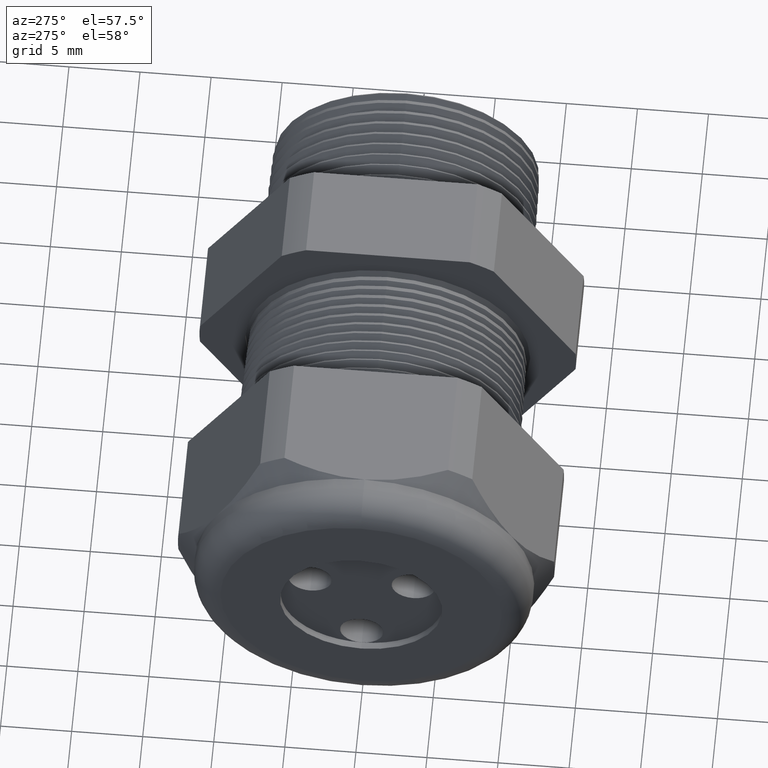
[diagram: clean part render]
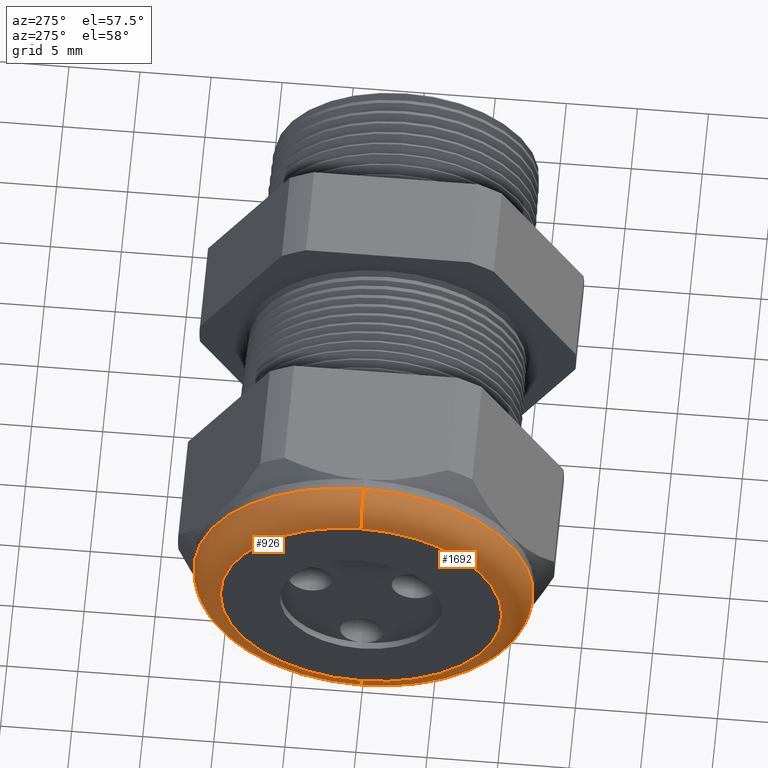
[diagram: same view with one multi-face feature highlighted, each face labeled with its STEP entity id]
A machine part, auxiliary view. The highlighted faces form ONE feature: a constant-radius fillet chain: 2 tangent blend faces with common blend radius 2.032 mm. The faces share edges in the B-rep.
Their STEP definitions:
[1] entity #1692 (Torus):
#930 = VERTEX_POINT ( 'NONE', #3406 ) ;
#931 = VERTEX_POINT ( 'NONE', #3405 ) ;
#933 = EDGE_CURVE ( 'NONE', #930, #934, #3404, .T. ) ;
#934 = VERTEX_POINT ( 'NONE', #3399 ) ;
#935 = VERTEX_POINT ( 'NONE', #3398 ) ;
#993 = EDGE_CURVE ( 'NONE', #931, #935, #3534, .T. ) ;
#1483 = EDGE_CURVE ( 'NONE', #931, #930, #4525, .T. ) ;
#1550 = EDGE_CURVE ( 'NONE', #934, #935, #4657, .T. ) ;
#1672 = ORIENTED_EDGE ( 'NONE', *, *, #993, .T. ) ;
#1673 = ORIENTED_EDGE ( 'NONE', *, *, #1550, .F. ) ;
#1692 = ADVANCED_FACE ( 'NONE', ( #4832 ), #4831, .T. ) ;
#1693 = EDGE_LOOP ( 'NONE', ( #1694, #1748, #1672, #1673 ) ) ;
#1694 = ORIENTED_EDGE ( 'NONE', *, *, #933, .F. ) ;
#1748 = ORIENTED_EDGE ( 'NONE', *, *, #1483, .F. ) ;
#3398 = CARTESIAN_POINT ( 'NONE',  ( -1.409999999999999900, 0.0000000000000000000, 0.3899999999999999600 ) ) ;
#3399 = CARTESIAN_POINT ( 'NONE',  ( -1.409999999999999900, 5.265981236333617600E-017, -0.3899999999999999600 ) ) ;
#3400 = DIRECTION ( 'NONE',  ( 0.0000000000000000000, -1.224646799147353900E-016, 1.000000000000000000 ) ) ;
#3401 = DIRECTION ( 'NONE',  ( 0.0000000000000000000, 1.000000000000000000, 1.224646799147353200E-016 ) ) ;
#3402 = CARTESIAN_POINT ( 'NONE',  ( -1.330000000000000100, 4.776122516674676800E-017, -0.3899999999999999600 ) ) ;
#3403 = AXIS2_PLACEMENT_3D ( 'NONE', #3402, #3401, #3400 ) ;
#3404 = CIRCLE ( 'NONE', #3403, 0.07999999999999996000 ) ;
#3405 = CARTESIAN_POINT ( 'NONE',  ( -1.330000000000000100, 5.755839955992558400E-017, 0.4699999999999999200 ) ) ;
#3406 = CARTESIAN_POINT ( 'NONE',  ( -1.330000000000000100, 0.0000000000000000000, -0.4699999999999999200 ) ) ;
#3530 = DIRECTION ( 'NONE',  ( 0.0000000000000000000, 0.0000000000000000000, -1.000000000000000000 ) ) ;
#3531 = DIRECTION ( 'NONE',  ( 0.0000000000000000000, -1.000000000000000000, 0.0000000000000000000 ) ) ;
#3532 = CARTESIAN_POINT ( 'NONE',  ( -1.330000000000000100, 0.0000000000000000000, 0.3899999999999999600 ) ) ;
#3533 = AXIS2_PLACEMENT_3D ( 'NONE', #3532, #3531, #3530 ) ;
#3534 = CIRCLE ( 'NONE', #3533, 0.07999999999999996000 ) ;
#4517 = DIRECTION ( 'NONE',  ( 0.0000000000000000000, 0.0000000000000000000, 1.000000000000000000 ) ) ;
#4518 = DIRECTION ( 'NONE',  ( 1.000000000000000000, 0.0000000000000000000, 0.0000000000000000000 ) ) ;
#4519 = CARTESIAN_POINT ( 'NONE',  ( -1.330000000000000100, 0.0000000000000000000, 0.0000000000000000000 ) ) ;
#4520 = AXIS2_PLACEMENT_3D ( 'NONE', #4519, #4518, #4517 ) ;
#4525 = CIRCLE ( 'NONE', #4520, 0.4699999999999999200 ) ;
#4653 = DIRECTION ( 'NONE',  ( 0.0000000000000000000, 0.0000000000000000000, 1.000000000000000000 ) ) ;
#4654 = DIRECTION ( 'NONE',  ( -1.000000000000000000, 0.0000000000000000000, 0.0000000000000000000 ) ) ;
#4655 = CARTESIAN_POINT ( 'NONE',  ( -1.409999999999999900, 0.0000000000000000000, 0.0000000000000000000 ) ) ;
#4656 = AXIS2_PLACEMENT_3D ( 'NONE', #4655, #4654, #4653 ) ;
#4657 = CIRCLE ( 'NONE', #4656, 0.3899999999999999600 ) ;
#4827 = DIRECTION ( 'NONE',  ( 0.0000000000000000000, 0.0000000000000000000, 1.000000000000000000 ) ) ;
#4828 = DIRECTION ( 'NONE',  ( -1.000000000000000000, 0.0000000000000000000, 0.0000000000000000000 ) ) ;
#4829 = CARTESIAN_POINT ( 'NONE',  ( -1.330000000000000100, 0.0000000000000000000, 0.0000000000000000000 ) ) ;
#4830 = AXIS2_PLACEMENT_3D ( 'NONE', #4829, #4828, #4827 ) ;
#4831 = TOROIDAL_SURFACE ( 'NONE', #4830, 0.3899999999999999600, 0.08000000000000000200 ) ;
#4832 = FACE_OUTER_BOUND ( 'NONE', #1693, .T. ) ;
[2] entity #926 (Torus):
#926 = ADVANCED_FACE ( 'NONE', ( #3417 ), #3414, .T. ) ;
#927 = EDGE_LOOP ( 'NONE', ( #928, #932, #990, #992 ) ) ;
#928 = ORIENTED_EDGE ( 'NONE', *, *, #929, .F. ) ;
#929 = EDGE_CURVE ( 'NONE', #930, #931, #3410, .T. ) ;
#930 = VERTEX_POINT ( 'NONE', #3406 ) ;
#931 = VERTEX_POINT ( 'NONE', #3405 ) ;
#932 = ORIENTED_EDGE ( 'NONE', *, *, #933, .T. ) ;
#933 = EDGE_CURVE ( 'NONE', #930, #934, #3404, .T. ) ;
#934 = VERTEX_POINT ( 'NONE', #3399 ) ;
#935 = VERTEX_POINT ( 'NONE', #3398 ) ;
#990 = ORIENTED_EDGE ( 'NONE', *, *, #991, .F. ) ;
#991 = EDGE_CURVE ( 'NONE', #935, #934, #3538, .T. ) ;
#992 = ORIENTED_EDGE ( 'NONE', *, *, #993, .F. ) ;
#993 = EDGE_CURVE ( 'NONE', #931, #935, #3534, .T. ) ;
#3398 = CARTESIAN_POINT ( 'NONE',  ( -1.409999999999999900, 0.0000000000000000000, 0.3899999999999999600 ) ) ;
#3399 = CARTESIAN_POINT ( 'NONE',  ( -1.409999999999999900, 5.265981236333617600E-017, -0.3899999999999999600 ) ) ;
#3400 = DIRECTION ( 'NONE',  ( 0.0000000000000000000, -1.224646799147353900E-016, 1.000000000000000000 ) ) ;
#3401 = DIRECTION ( 'NONE',  ( 0.0000000000000000000, 1.000000000000000000, 1.224646799147353200E-016 ) ) ;
#3402 = CARTESIAN_POINT ( 'NONE',  ( -1.330000000000000100, 4.776122516674676800E-017, -0.3899999999999999600 ) ) ;
#3403 = AXIS2_PLACEMENT_3D ( 'NONE', #3402, #3401, #3400 ) ;
#3404 = CIRCLE ( 'NONE', #3403, 0.07999999999999996000 ) ;
#3405 = CARTESIAN_POINT ( 'NONE',  ( -1.330000000000000100, 5.755839955992558400E-017, 0.4699999999999999200 ) ) ;
#3406 = CARTESIAN_POINT ( 'NONE',  ( -1.330000000000000100, 0.0000000000000000000, -0.4699999999999999200 ) ) ;
#3407 = DIRECTION ( 'NONE',  ( 0.0000000000000000000, 0.0000000000000000000, 1.000000000000000000 ) ) ;
#3408 = DIRECTION ( 'NONE',  ( 1.000000000000000000, 0.0000000000000000000, 0.0000000000000000000 ) ) ;
#3409 = AXIS2_PLACEMENT_3D ( 'NONE', #3415, #3408, #3407 ) ;
#3410 = CIRCLE ( 'NONE', #3409, 0.4699999999999999200 ) ;
#3411 = DIRECTION ( 'NONE',  ( 0.0000000000000000000, 0.0000000000000000000, 1.000000000000000000 ) ) ;
#3412 = DIRECTION ( 'NONE',  ( -1.000000000000000000, 0.0000000000000000000, 0.0000000000000000000 ) ) ;
#3413 = AXIS2_PLACEMENT_3D ( 'NONE', #3416, #3412, #3411 ) ;
#3414 = TOROIDAL_SURFACE ( 'NONE', #3413, 0.3899999999999999600, 0.08000000000000000200 ) ;
#3415 = CARTESIAN_POINT ( 'NONE',  ( -1.330000000000000100, 0.0000000000000000000, 0.0000000000000000000 ) ) ;
#3416 = CARTESIAN_POINT ( 'NONE',  ( -1.330000000000000100, 0.0000000000000000000, 0.0000000000000000000 ) ) ;
#3417 = FACE_OUTER_BOUND ( 'NONE', #927, .T. ) ;
#3530 = DIRECTION ( 'NONE',  ( 0.0000000000000000000, 0.0000000000000000000, -1.000000000000000000 ) ) ;
#3531 = DIRECTION ( 'NONE',  ( 0.0000000000000000000, -1.000000000000000000, 0.0000000000000000000 ) ) ;
#3532 = CARTESIAN_POINT ( 'NONE',  ( -1.330000000000000100, 0.0000000000000000000, 0.3899999999999999600 ) ) ;
#3533 = AXIS2_PLACEMENT_3D ( 'NONE', #3532, #3531, #3530 ) ;
#3534 = CIRCLE ( 'NONE', #3533, 0.07999999999999996000 ) ;
#3535 = DIRECTION ( 'NONE',  ( 0.0000000000000000000, 0.0000000000000000000, 1.000000000000000000 ) ) ;
#3536 = DIRECTION ( 'NONE',  ( -1.000000000000000000, 0.0000000000000000000, 0.0000000000000000000 ) ) ;
#3537 = AXIS2_PLACEMENT_3D ( 'NONE', #3543, #3536, #3535 ) ;
#3538 = CIRCLE ( 'NONE', #3537, 0.3899999999999999600 ) ;
#3543 = CARTESIAN_POINT ( 'NONE',  ( -1.409999999999999900, 0.0000000000000000000, 0.0000000000000000000 ) ) ;